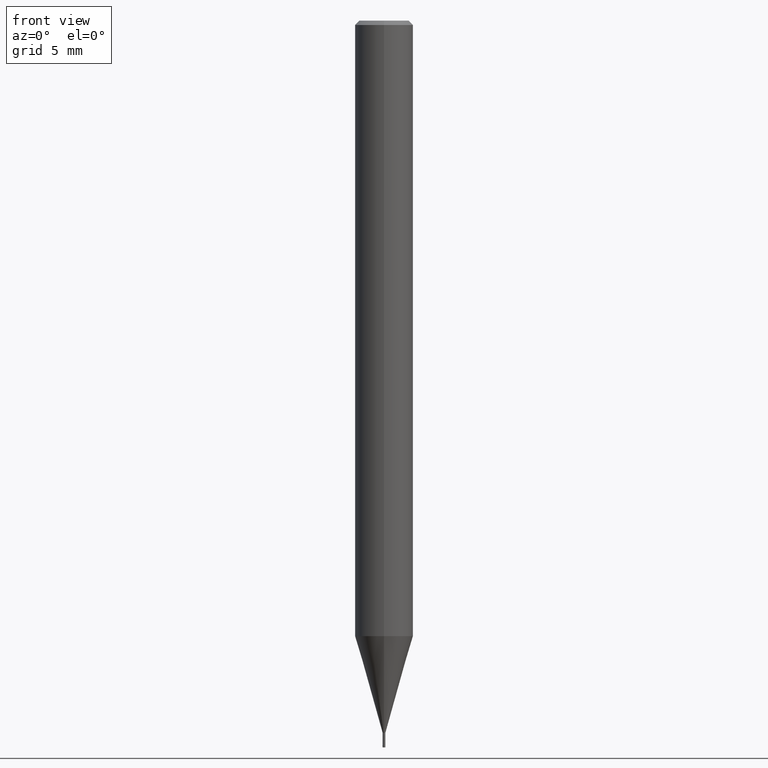
[diagram: clean part render]
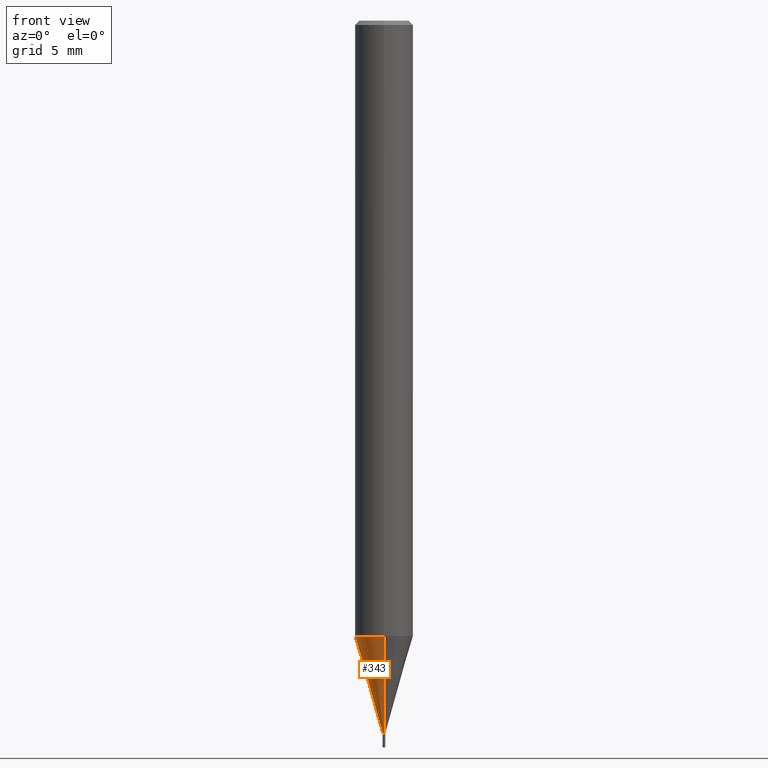
[diagram: same view with one face highlighted and labeled with its STEP entity id]
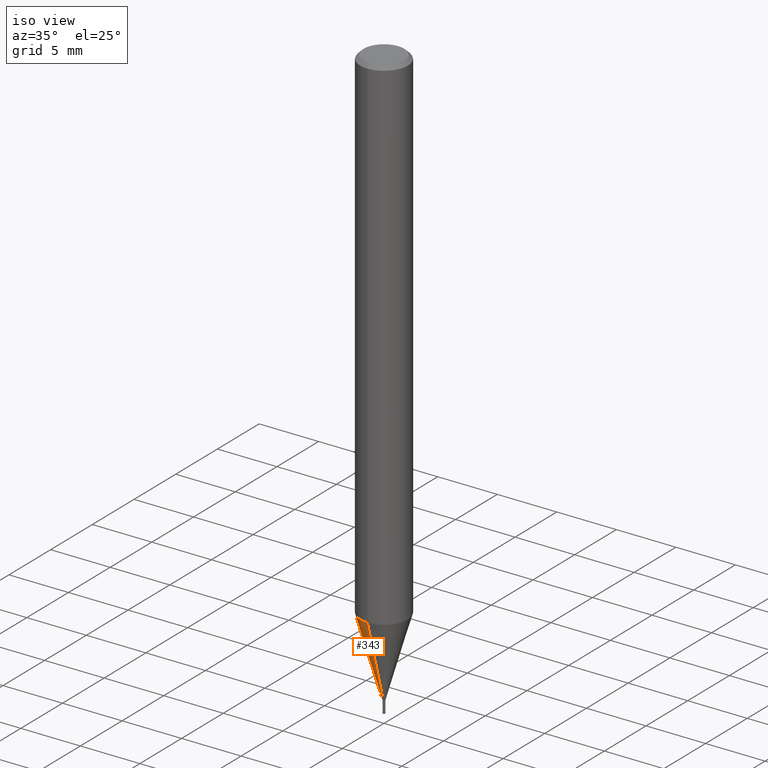
[diagram: same view with one face highlighted and labeled with its STEP entity id]
A machine part, front view. The second image highlights one B-rep face of the part: STEP entity #343.
A second angle (iso view) of the same face is appended — the face is thin or edge-on in the first view.
In plain terms, the highlighted conical surface has half-angle 16.001 deg.
Its self-contained STEP definition (entity closure, byte-faithful):
#143=VERTEX_POINT('',#378);
#155=VERTEX_POINT('',#391);
#165=EDGE_CURVE('',#155,#171,#403,.T.);
#171=VERTEX_POINT('',#409);
#199=EDGE_CURVE('',#155,#227,#443,.T.);
#227=VERTEX_POINT('',#473);
#265=EDGE_CURVE('',#143,#227,#514,.T.);
#321=EDGE_CURVE('',#171,#143,#581,.T.);
#343=ADVANCED_FACE('',(#605),#606,.T.);
#378=CARTESIAN_POINT('',(0.0,1.99995,-42.338));
#391=CARTESIAN_POINT('',(1.13214857410879E-017,-0.09245,-48.99));
#403=LINE('',#665,#666);
#409=CARTESIAN_POINT('',(2.44915147732706E-016,-1.99995,-42.338));
#443=CIRCLE('',#714,0.09245);
#473=CARTESIAN_POINT('',(0.0,0.09245,-48.99));
#514=LINE('',#806,#807);
#581=CIRCLE('',#890,1.99995);
#605=FACE_OUTER_BOUND('',#924,.T.);
#606=CONICAL_SURFACE('',#925,1.0462,0.279262361421134);
#665=CARTESIAN_POINT('',(1.28118316736897E-016,-1.0462,-45.664));
#666=VECTOR('',#977,1.0);
#714=AXIS2_PLACEMENT_3D('',#1033,#1034,#1035);
#806=CARTESIAN_POINT('',(-1.28118316736897E-016,1.0462,-45.664));
#807=VECTOR('',#1109,1.0);
#890=AXIS2_PLACEMENT_3D('',#1205,#1206,#1207);
#924=EDGE_LOOP('',(#1240,#1241,#1242,#1243));
#925=AXIS2_PLACEMENT_3D('',#1244,#1245,#1246);
#977=DIRECTION('',(3.37558653544073E-017,-0.275646661876649,0.961259027419904));
#1033=CARTESIAN_POINT('',(0.0,0.0,-48.99));
#1034=DIRECTION('',(0.0,0.0,-1.0));
#1035=DIRECTION('',(0.0,1.0,0.0));
#1109=DIRECTION('',(3.37558653544073E-017,-0.275646661876649,-0.961259027419904));
#1205=CARTESIAN_POINT('',(0.0,0.0,-42.338));
#1206=DIRECTION('',(0.0,0.0,-1.0));
#1207=DIRECTION('',(0.0,1.0,0.0));
#1240=ORIENTED_EDGE('',*,*,#265,.T.);
#1241=ORIENTED_EDGE('',*,*,#199,.F.);
#1242=ORIENTED_EDGE('',*,*,#165,.T.);
#1243=ORIENTED_EDGE('',*,*,#321,.T.);
#1244=CARTESIAN_POINT('',(0.0,0.0,-45.664));
#1245=DIRECTION('',(-0.0,-0.0,1.0));
#1246=DIRECTION('',(0.0,1.0,0.0));